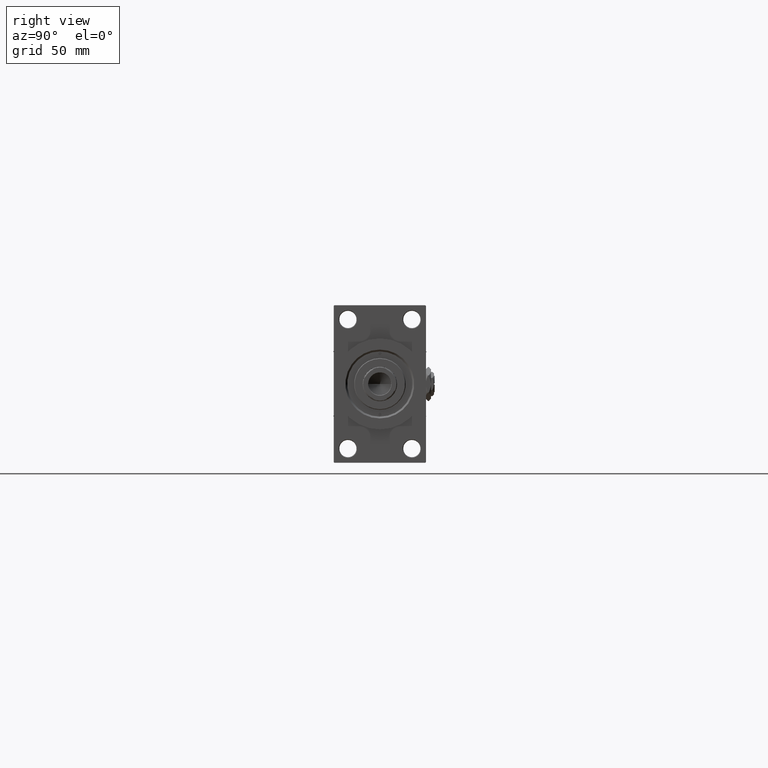
[diagram: clean part render]
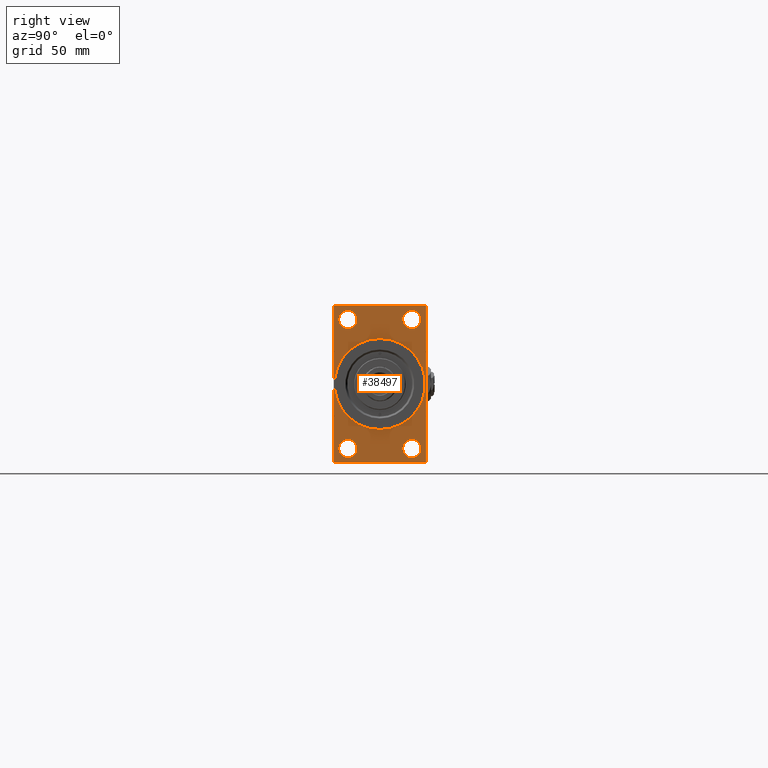
[diagram: same view with one face highlighted and labeled with its STEP entity id]
A machine part, right view. The second image highlights one B-rep face of the part: STEP entity #38497.
In plain terms, the highlighted planar face has unit normal (-1, 0, 0).
Its self-contained STEP definition (entity closure, byte-faithful):
#144 = CARTESIAN_POINT ( 'NONE',  ( 518.0000000000000000, 0.000000000000000000, 0.000000000000000000 ) ) ;
#205 = CARTESIAN_POINT ( 'NONE',  ( 518.0000000000000000, 37.49999999999999289, -63.50000000000007105 ) ) ;
#241 = AXIS2_PLACEMENT_3D ( 'NONE', #8613, #7634, #15906 ) ;
#572 = EDGE_CURVE ( 'NONE', #9989, #45084, #10700, .T. ) ;
#616 = FACE_BOUND ( 'NONE', #11260, .T. ) ;
#776 = ORIENTED_EDGE ( 'NONE', *, *, #49113, .T. ) ;
#1048 = ORIENTED_EDGE ( 'NONE', *, *, #29066, .T. ) ;
#1603 = CARTESIAN_POINT ( 'NONE',  ( 518.0000000000000000, -37.49999999999999289, 63.99999999999997158 ) ) ;
#2325 = LINE ( 'NONE', #47403, #13502 ) ;
#2776 = ORIENTED_EDGE ( 'NONE', *, *, #12582, .F. ) ;
#3540 = CARTESIAN_POINT ( 'NONE',  ( 518.0000000000000000, 26.00000000000000000, -44.99999999999992895 ) ) ;
#3958 = LINE ( 'NONE', #205, #7295 ) ;
#4617 = FACE_OUTER_BOUND ( 'NONE', #29258, .T. ) ;
#6206 = CARTESIAN_POINT ( 'NONE',  ( 518.0000000000000000, 37.49999999999999289, -63.50000000000007105 ) ) ;
#6296 = EDGE_CURVE ( 'NONE', #49507, #11422, #38088, .T. ) ;
#6579 = VERTEX_POINT ( 'NONE', #13425 ) ;
#6774 = ORIENTED_EDGE ( 'NONE', *, *, #6296, .T. ) ;
#7295 = VECTOR ( 'NONE', #15491, 999.9999999999998863 ) ;
#7634 = DIRECTION ( 'NONE',  ( -1.000000000000000000, 0.000000000000000000, -0.000000000000000000 ) ) ;
#8370 = FACE_BOUND ( 'NONE', #10028, .T. ) ;
#8613 = CARTESIAN_POINT ( 'NONE',  ( 518.0000000000000000, 0.000000000000000000, 0.000000000000000000 ) ) ;
#8700 = CARTESIAN_POINT ( 'NONE',  ( 518.0000000000000000, 26.00000000000000000, -60.00000000000005684 ) ) ;
#8814 = CIRCLE ( 'NONE', #35238, 7.500000000000062172 ) ;
#9112 = ORIENTED_EDGE ( 'NONE', *, *, #9159, .F. ) ;
#9159 = EDGE_CURVE ( 'NONE', #46973, #23300, #35155, .T. ) ;
#9595 = DIRECTION ( 'NONE',  ( 0.000000000000000000, 0.000000000000000000, -1.000000000000000000 ) ) ;
#9749 = EDGE_CURVE ( 'NONE', #45084, #9989, #28664, .T. ) ;
#9989 = VERTEX_POINT ( 'NONE', #25282 ) ;
#10028 = EDGE_LOOP ( 'NONE', ( #45055, #16223 ) ) ;
#10646 = AXIS2_PLACEMENT_3D ( 'NONE', #31463, #12931, #42240 ) ;
#10700 = CIRCLE ( 'NONE', #33903, 7.500000000000062172 ) ;
#11260 = EDGE_LOOP ( 'NONE', ( #776, #47084 ) ) ;
#11422 = VERTEX_POINT ( 'NONE', #37265 ) ;
#11649 = VERTEX_POINT ( 'NONE', #47990 ) ;
#11894 = FACE_BOUND ( 'NONE', #23545, .T. ) ;
#11925 = CARTESIAN_POINT ( 'NONE',  ( 518.0000000000000000, 37.50000000000000000, 63.49999999999998579 ) ) ;
#12152 = DIRECTION ( 'NONE',  ( 0.000000000000000000, 0.000000000000000000, -1.000000000000000000 ) ) ;
#12582 = EDGE_CURVE ( 'NONE', #36673, #19498, #12712, .T. ) ;
#12705 = VECTOR ( 'NONE', #23345, 1000.000000000000000 ) ;
#12712 = CIRCLE ( 'NONE', #40698, 37.00000000000000000 ) ;
#12801 = CIRCLE ( 'NONE', #16818, 7.500000000000062172 ) ;
#12931 = DIRECTION ( 'NONE',  ( -1.000000000000000000, 0.000000000000000000, -0.000000000000000000 ) ) ;
#13425 = CARTESIAN_POINT ( 'NONE',  ( 518.0000000000000000, -37.49999999999999289, 63.49999999999986500 ) ) ;
#13435 = VECTOR ( 'NONE', #31406, 1000.000000000000000 ) ;
#13502 = VECTOR ( 'NONE', #32873, 999.9999999999998863 ) ;
#15491 = DIRECTION ( 'NONE',  ( -0.000000000000000000, 0.7071067811865574537, 0.7071067811865376918 ) ) ;
#15577 = VERTEX_POINT ( 'NONE', #19950 ) ;
#15661 = FACE_BOUND ( 'NONE', #22239, .T. ) ;
#15740 = EDGE_CURVE ( 'NONE', #46973, #15577, #42601, .T. ) ;
#15849 = VERTEX_POINT ( 'NONE', #28338 ) ;
#15906 = DIRECTION ( 'NONE',  ( -0.000000000000000000, 0.000000000000000000, 1.000000000000000000 ) ) ;
#16018 = CARTESIAN_POINT ( 'NONE',  ( 518.0000000000000000, -25.99999999999999645, 52.50000000000000000 ) ) ;
#16137 = CARTESIAN_POINT ( 'NONE',  ( 518.0000000000000000, 37.50000000000000000, 63.99999999999998579 ) ) ;
#16223 = ORIENTED_EDGE ( 'NONE', *, *, #9749, .T. ) ;
#16546 = CARTESIAN_POINT ( 'NONE',  ( 518.0000000000000000, -36.99999999999993605, -64.00000000000001421 ) ) ;
#16592 = EDGE_CURVE ( 'NONE', #24327, #30761, #8814, .T. ) ;
#16750 = CARTESIAN_POINT ( 'NONE',  ( 518.0000000000000000, 37.49999999999999289, -64.00000000000000000 ) ) ;
#16818 = AXIS2_PLACEMENT_3D ( 'NONE', #27265, #46276, #42518 ) ;
#16870 = DIRECTION ( 'NONE',  ( -1.000000000000000000, 0.000000000000000000, -0.000000000000000000 ) ) ;
#17033 = CARTESIAN_POINT ( 'NONE',  ( 518.0000000000000000, 26.00000000000000000, -52.49999999999999289 ) ) ;
#17581 = CARTESIAN_POINT ( 'NONE',  ( 518.0000000000000000, -36.99999999999993605, -64.00000000000001421 ) ) ;
#17654 = CARTESIAN_POINT ( 'NONE',  ( 518.0000000000000000, -25.99999999999999645, -44.99999999999992895 ) ) ;
#17735 = CARTESIAN_POINT ( 'NONE',  ( 518.0000000000000000, 26.00000000000000000, 52.49999999999999289 ) ) ;
#17830 = ORIENTED_EDGE ( 'NONE', *, *, #26930, .T. ) ;
#18217 = DIRECTION ( 'NONE',  ( -1.000000000000000000, 0.000000000000000000, -0.000000000000000000 ) ) ;
#18329 = EDGE_CURVE ( 'NONE', #19498, #36673, #40443, .T. ) ;
#18855 = AXIS2_PLACEMENT_3D ( 'NONE', #26946, #42197, #23189 ) ;
#19498 = VERTEX_POINT ( 'NONE', #29694 ) ;
#19900 = LINE ( 'NONE', #35395, #45828 ) ;
#19950 = CARTESIAN_POINT ( 'NONE',  ( 518.0000000000000000, 36.99999999999994316, 63.99999999999998579 ) ) ;
#20540 = DIRECTION ( 'NONE',  ( -1.000000000000000000, 0.000000000000000000, -0.000000000000000000 ) ) ;
#20836 = CARTESIAN_POINT ( 'NONE',  ( 518.0000000000000000, -25.99999999999999645, -52.49999999999999289 ) ) ;
#22215 = CARTESIAN_POINT ( 'NONE',  ( 518.0000000000000000, -25.99999999999999645, 52.50000000000000000 ) ) ;
#22239 = EDGE_LOOP ( 'NONE', ( #2776, #28596 ) ) ;
#22813 = EDGE_LOOP ( 'NONE', ( #23003, #6774 ) ) ;
#23003 = ORIENTED_EDGE ( 'NONE', *, *, #30637, .T. ) ;
#23189 = DIRECTION ( 'NONE',  ( 0.000000000000000000, 0.000000000000000000, -1.000000000000000000 ) ) ;
#23300 = VERTEX_POINT ( 'NONE', #6206 ) ;
#23345 = DIRECTION ( 'NONE',  ( 0.000000000000000000, -0.7071067811865867636, 0.7071067811865081598 ) ) ;
#23545 = EDGE_LOOP ( 'NONE', ( #1048, #24090 ) ) ;
#23585 = EDGE_CURVE ( 'NONE', #11649, #6579, #2325, .T. ) ;
#24090 = ORIENTED_EDGE ( 'NONE', *, *, #35104, .T. ) ;
#24093 = ORIENTED_EDGE ( 'NONE', *, *, #49506, .T. ) ;
#24327 = VERTEX_POINT ( 'NONE', #17654 ) ;
#24723 = VERTEX_POINT ( 'NONE', #17581 ) ;
#25282 = CARTESIAN_POINT ( 'NONE',  ( 518.0000000000000000, -25.99999999999999645, 44.99999999999993605 ) ) ;
#25987 = DIRECTION ( 'NONE',  ( 0.000000000000000000, 0.000000000000000000, 1.000000000000000000 ) ) ;
#26930 = EDGE_CURVE ( 'NONE', #35354, #24723, #35062, .T. ) ;
#26946 = CARTESIAN_POINT ( 'NONE',  ( 518.0000000000000000, 0.000000000000000000, 0.000000000000000000 ) ) ;
#27247 = CARTESIAN_POINT ( 'NONE',  ( 518.0000000000000000, 0.000000000000000000, 37.00000000000000000 ) ) ;
#27265 = CARTESIAN_POINT ( 'NONE',  ( 518.0000000000000000, 26.00000000000000000, 52.49999999999999289 ) ) ;
#27437 = VECTOR ( 'NONE', #31272, 1000.000000000000000 ) ;
#27472 = VECTOR ( 'NONE', #9595, 1000.000000000000000 ) ;
#27752 = CARTESIAN_POINT ( 'NONE',  ( 518.0000000000000000, -25.99999999999999645, -60.00000000000005684 ) ) ;
#28338 = CARTESIAN_POINT ( 'NONE',  ( 518.0000000000000000, 37.00000000000004974, -64.00000000000000000 ) ) ;
#28496 = AXIS2_PLACEMENT_3D ( 'NONE', #17735, #18217, #25987 ) ;
#28596 = ORIENTED_EDGE ( 'NONE', *, *, #18329, .F. ) ;
#28664 = CIRCLE ( 'NONE', #43018, 7.500000000000062172 ) ;
#29066 = EDGE_CURVE ( 'NONE', #30806, #32615, #35135, .T. ) ;
#29258 = EDGE_LOOP ( 'NONE', ( #24093, #17830, #39108, #35570, #9112, #49504, #41033, #49366 ) ) ;
#29333 = DIRECTION ( 'NONE',  ( 0.000000000000000000, 0.000000000000000000, 1.000000000000000000 ) ) ;
#29694 = CARTESIAN_POINT ( 'NONE',  ( 518.0000000000000000, 4.531193156845206793E-15, -37.00000000000000000 ) ) ;
#29749 = CARTESIAN_POINT ( 'NONE',  ( 518.0000000000000000, -37.49999999999999289, -63.50000000000002842 ) ) ;
#29754 = AXIS2_PLACEMENT_3D ( 'NONE', #37790, #16870, #47401 ) ;
#30637 = EDGE_CURVE ( 'NONE', #11422, #49507, #12801, .T. ) ;
#30761 = VERTEX_POINT ( 'NONE', #27752 ) ;
#30806 = VERTEX_POINT ( 'NONE', #8700 ) ;
#30950 = DIRECTION ( 'NONE',  ( 1.000000000000000000, 0.000000000000000000, 0.000000000000000000 ) ) ;
#31272 = DIRECTION ( 'NONE',  ( 0.000000000000000000, -1.000000000000000000, -1.850371707708594563E-16 ) ) ;
#31406 = DIRECTION ( 'NONE',  ( 0.000000000000000000, -5.421010862427522170E-17, -1.000000000000000000 ) ) ;
#31463 = CARTESIAN_POINT ( 'NONE',  ( 518.0000000000000000, -25.99999999999999645, -52.49999999999999289 ) ) ;
#31581 = CARTESIAN_POINT ( 'NONE',  ( 518.0000000000000000, 36.99999999999994316, 63.99999999999998579 ) ) ;
#32615 = VERTEX_POINT ( 'NONE', #3540 ) ;
#32873 = DIRECTION ( 'NONE',  ( -0.000000000000000000, -0.7071067811865525687, -0.7071067811865425767 ) ) ;
#33038 = CIRCLE ( 'NONE', #10646, 7.500000000000062172 ) ;
#33903 = AXIS2_PLACEMENT_3D ( 'NONE', #22215, #37467, #41472 ) ;
#34426 = FACE_BOUND ( 'NONE', #22813, .T. ) ;
#35062 = LINE ( 'NONE', #16546, #43181 ) ;
#35104 = EDGE_CURVE ( 'NONE', #32615, #30806, #48148, .T. ) ;
#35135 = CIRCLE ( 'NONE', #38424, 7.500000000000062172 ) ;
#35155 = LINE ( 'NONE', #16137, #13435 ) ;
#35238 = AXIS2_PLACEMENT_3D ( 'NONE', #20836, #36339, #29333 ) ;
#35354 = VERTEX_POINT ( 'NONE', #29749 ) ;
#35395 = CARTESIAN_POINT ( 'NONE',  ( 518.0000000000000000, 37.50000000000000000, 63.99999999999998579 ) ) ;
#35570 = ORIENTED_EDGE ( 'NONE', *, *, #44393, .T. ) ;
#35798 = DIRECTION ( 'NONE',  ( 0.000000000000000000, 0.000000000000000000, 1.000000000000000000 ) ) ;
#36339 = DIRECTION ( 'NONE',  ( -1.000000000000000000, 0.000000000000000000, -0.000000000000000000 ) ) ;
#36638 = LINE ( 'NONE', #1603, #27472 ) ;
#36673 = VERTEX_POINT ( 'NONE', #27247 ) ;
#37265 = CARTESIAN_POINT ( 'NONE',  ( 518.0000000000000000, 26.00000000000000000, 44.99999999999992895 ) ) ;
#37467 = DIRECTION ( 'NONE',  ( -1.000000000000000000, 0.000000000000000000, -0.000000000000000000 ) ) ;
#37790 = CARTESIAN_POINT ( 'NONE',  ( 518.0000000000000000, 26.00000000000000000, -52.49999999999999289 ) ) ;
#38088 = CIRCLE ( 'NONE', #28496, 7.500000000000062172 ) ;
#38424 = AXIS2_PLACEMENT_3D ( 'NONE', #17033, #20540, #35798 ) ;
#38497 = ADVANCED_FACE ( 'NONE', ( #8370, #616, #11894, #34426, #15661, #4617 ), #46438, .F. ) ;
#39108 = ORIENTED_EDGE ( 'NONE', *, *, #47765, .F. ) ;
#39292 = DIRECTION ( 'NONE',  ( 0.000000000000000000, 0.000000000000000000, 1.000000000000000000 ) ) ;
#40397 = CARTESIAN_POINT ( 'NONE',  ( 518.0000000000000000, 26.00000000000000000, 60.00000000000005684 ) ) ;
#40443 = CIRCLE ( 'NONE', #18855, 37.00000000000000000 ) ;
#40698 = AXIS2_PLACEMENT_3D ( 'NONE', #144, #30950, #12152 ) ;
#41033 = ORIENTED_EDGE ( 'NONE', *, *, #49321, .T. ) ;
#41472 = DIRECTION ( 'NONE',  ( 0.000000000000000000, 0.000000000000000000, 1.000000000000000000 ) ) ;
#42197 = DIRECTION ( 'NONE',  ( 1.000000000000000000, 0.000000000000000000, 0.000000000000000000 ) ) ;
#42240 = DIRECTION ( 'NONE',  ( 0.000000000000000000, 0.000000000000000000, 1.000000000000000000 ) ) ;
#42347 = DIRECTION ( 'NONE',  ( 0.000000000000000000, 0.7071067811865965336, -0.7071067811864985009 ) ) ;
#42518 = DIRECTION ( 'NONE',  ( 0.000000000000000000, 0.000000000000000000, 1.000000000000000000 ) ) ;
#42601 = LINE ( 'NONE', #31581, #12705 ) ;
#42801 = DIRECTION ( 'NONE',  ( -1.000000000000000000, 0.000000000000000000, -0.000000000000000000 ) ) ;
#43018 = AXIS2_PLACEMENT_3D ( 'NONE', #16018, #42801, #39292 ) ;
#43181 = VECTOR ( 'NONE', #42347, 1000.000000000000114 ) ;
#43277 = LINE ( 'NONE', #16750, #27437 ) ;
#44393 = EDGE_CURVE ( 'NONE', #15849, #23300, #3958, .T. ) ;
#45055 = ORIENTED_EDGE ( 'NONE', *, *, #572, .T. ) ;
#45084 = VERTEX_POINT ( 'NONE', #45602 ) ;
#45602 = CARTESIAN_POINT ( 'NONE',  ( 518.0000000000000000, -25.99999999999999645, 60.00000000000005684 ) ) ;
#45828 = VECTOR ( 'NONE', #46423, 1000.000000000000000 ) ;
#46276 = DIRECTION ( 'NONE',  ( -1.000000000000000000, 0.000000000000000000, -0.000000000000000000 ) ) ;
#46423 = DIRECTION ( 'NONE',  ( 0.000000000000000000, -1.000000000000000000, -1.850371707708594563E-16 ) ) ;
#46438 = PLANE ( 'NONE',  #241 ) ;
#46973 = VERTEX_POINT ( 'NONE', #11925 ) ;
#47084 = ORIENTED_EDGE ( 'NONE', *, *, #16592, .T. ) ;
#47401 = DIRECTION ( 'NONE',  ( 0.000000000000000000, 0.000000000000000000, 1.000000000000000000 ) ) ;
#47403 = CARTESIAN_POINT ( 'NONE',  ( 518.0000000000000000, -37.49999999999999289, 63.49999999999986500 ) ) ;
#47765 = EDGE_CURVE ( 'NONE', #15849, #24723, #43277, .T. ) ;
#47990 = CARTESIAN_POINT ( 'NONE',  ( 518.0000000000000000, -36.99999999999987210, 63.99999999999997158 ) ) ;
#48148 = CIRCLE ( 'NONE', #29754, 7.500000000000062172 ) ;
#49113 = EDGE_CURVE ( 'NONE', #30761, #24327, #33038, .T. ) ;
#49321 = EDGE_CURVE ( 'NONE', #15577, #11649, #19900, .T. ) ;
#49366 = ORIENTED_EDGE ( 'NONE', *, *, #23585, .T. ) ;
#49504 = ORIENTED_EDGE ( 'NONE', *, *, #15740, .T. ) ;
#49506 = EDGE_CURVE ( 'NONE', #6579, #35354, #36638, .T. ) ;
#49507 = VERTEX_POINT ( 'NONE', #40397 ) ;